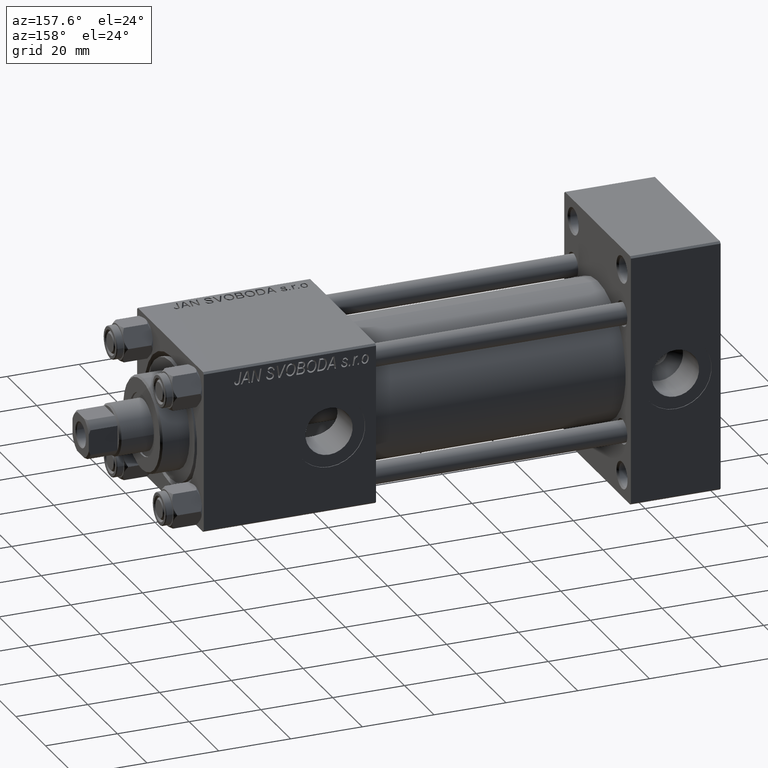
[diagram: clean part render]
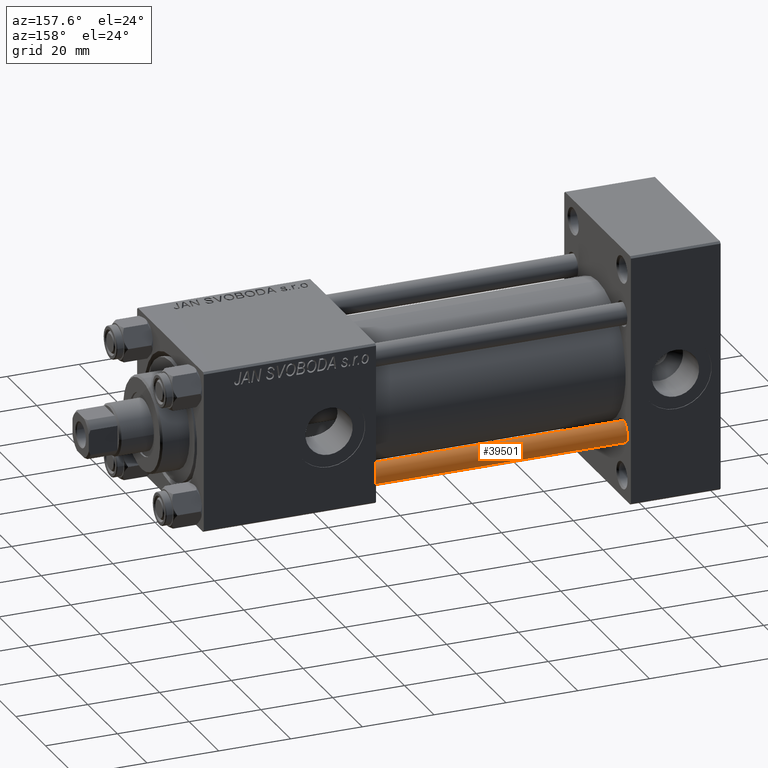
[diagram: same view with one face highlighted and labeled with its STEP entity id]
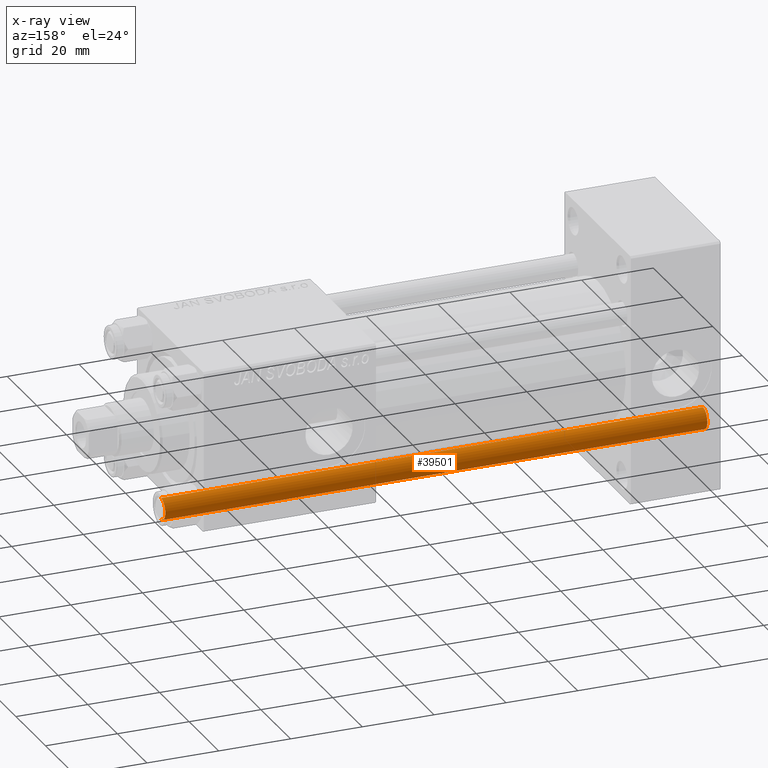
[diagram: x-ray of the same camera — body ghosted, the highlighted face saturated]
A machine part, auxiliary view. The second image highlights one B-rep face of the part: STEP entity #39501.
The next image is the same camera in x-ray: the body ghosted, the highlighted face saturated — about 0% of this face is hidden behind the body in this view.
In plain terms, the highlighted cylindrical surface (edge-blend (fillet) strip) has radius 3 mm, axis along (-1, 0, 0).
Its self-contained STEP definition (entity closure, byte-faithful):
#1305 = DIRECTION ( 'NONE',  ( -0.000000000000000000, -0.000000000000000000, -1.000000000000000000 ) ) ;
#1581 = ORIENTED_EDGE ( 'NONE', *, *, #28020, .T. ) ;
#3572 = VECTOR ( 'NONE', #1305, 1000.000000000000000 ) ;
#4066 = EDGE_CURVE ( 'NONE', #31555, #7756, #12392, .T. ) ;
#4088 = CARTESIAN_POINT ( 'NONE',  ( -3.000000000000000444, 0.000000000000000000, 151.5000000000000284 ) ) ;
#5688 = AXIS2_PLACEMENT_3D ( 'NONE', #41036, #13788, #49372 ) ;
#5853 = AXIS2_PLACEMENT_3D ( 'NONE', #20999, #13430, #39941 ) ;
#6103 = CARTESIAN_POINT ( 'NONE',  ( -3.000000000000000444, 0.000000000000000000, 0.5000000000000559552 ) ) ;
#7756 = VERTEX_POINT ( 'NONE', #6103 ) ;
#7854 = EDGE_LOOP ( 'NONE', ( #26084, #43778, #23336, #1581 ) ) ;
#11755 = VERTEX_POINT ( 'NONE', #31850 ) ;
#12392 = LINE ( 'NONE', #35840, #21713 ) ;
#12427 = EDGE_CURVE ( 'NONE', #14265, #31555, #49406, .T. ) ;
#13259 = CYLINDRICAL_SURFACE ( 'NONE', #33472, 3.000000000000000444 ) ;
#13430 = DIRECTION ( 'NONE',  ( 0.000000000000000000, 0.000000000000000000, -1.000000000000000000 ) ) ;
#13788 = DIRECTION ( 'NONE',  ( -0.000000000000000000, -0.000000000000000000, 1.000000000000000000 ) ) ;
#14265 = VERTEX_POINT ( 'NONE', #38707 ) ;
#20338 = DIRECTION ( 'NONE',  ( -1.000000000000000000, 0.000000000000000000, 0.000000000000000000 ) ) ;
#20999 = CARTESIAN_POINT ( 'NONE',  ( 0.000000000000000000, 0.000000000000000000, 151.5000000000000284 ) ) ;
#21080 = FACE_OUTER_BOUND ( 'NONE', #7854, .T. ) ;
#21713 = VECTOR ( 'NONE', #24734, 1000.000000000000000 ) ;
#23336 = ORIENTED_EDGE ( 'NONE', *, *, #4066, .T. ) ;
#24116 = CARTESIAN_POINT ( 'NONE',  ( 0.000000000000000000, 0.000000000000000000, 152.0000000000000000 ) ) ;
#24734 = DIRECTION ( 'NONE',  ( -0.000000000000000000, -0.000000000000000000, -1.000000000000000000 ) ) ;
#26084 = ORIENTED_EDGE ( 'NONE', *, *, #41332, .F. ) ;
#28020 = EDGE_CURVE ( 'NONE', #7756, #11755, #34685, .T. ) ;
#28074 = LINE ( 'NONE', #46549, #3572 ) ;
#31555 = VERTEX_POINT ( 'NONE', #4088 ) ;
#31850 = CARTESIAN_POINT ( 'NONE',  ( 3.000000000000000444, 3.673940397442060361E-16, 0.5000000000000559552 ) ) ;
#33472 = AXIS2_PLACEMENT_3D ( 'NONE', #24116, #39767, #20338 ) ;
#34685 = CIRCLE ( 'NONE', #5688, 3.000000000000000444 ) ;
#35840 = CARTESIAN_POINT ( 'NONE',  ( -3.000000000000000444, 0.000000000000000000, 152.0000000000000000 ) ) ;
#38707 = CARTESIAN_POINT ( 'NONE',  ( 3.000000000000000444, 3.673940397442060361E-16, 151.5000000000000284 ) ) ;
#39501 = ADVANCED_FACE ( 'NONE', ( #21080 ), #13259, .T. ) ;
#39767 = DIRECTION ( 'NONE',  ( -0.000000000000000000, -0.000000000000000000, -1.000000000000000000 ) ) ;
#39941 = DIRECTION ( 'NONE',  ( 1.000000000000000000, 0.000000000000000000, 0.000000000000000000 ) ) ;
#41036 = CARTESIAN_POINT ( 'NONE',  ( 0.000000000000000000, 0.000000000000000000, 0.5000000000000559552 ) ) ;
#41332 = EDGE_CURVE ( 'NONE', #14265, #11755, #28074, .T. ) ;
#43778 = ORIENTED_EDGE ( 'NONE', *, *, #12427, .T. ) ;
#46549 = CARTESIAN_POINT ( 'NONE',  ( 3.000000000000000444, 3.673940397442060361E-16, 152.0000000000000000 ) ) ;
#49372 = DIRECTION ( 'NONE',  ( 1.000000000000000000, 0.000000000000000000, 0.000000000000000000 ) ) ;
#49406 = CIRCLE ( 'NONE', #5853, 3.000000000000000444 ) ;